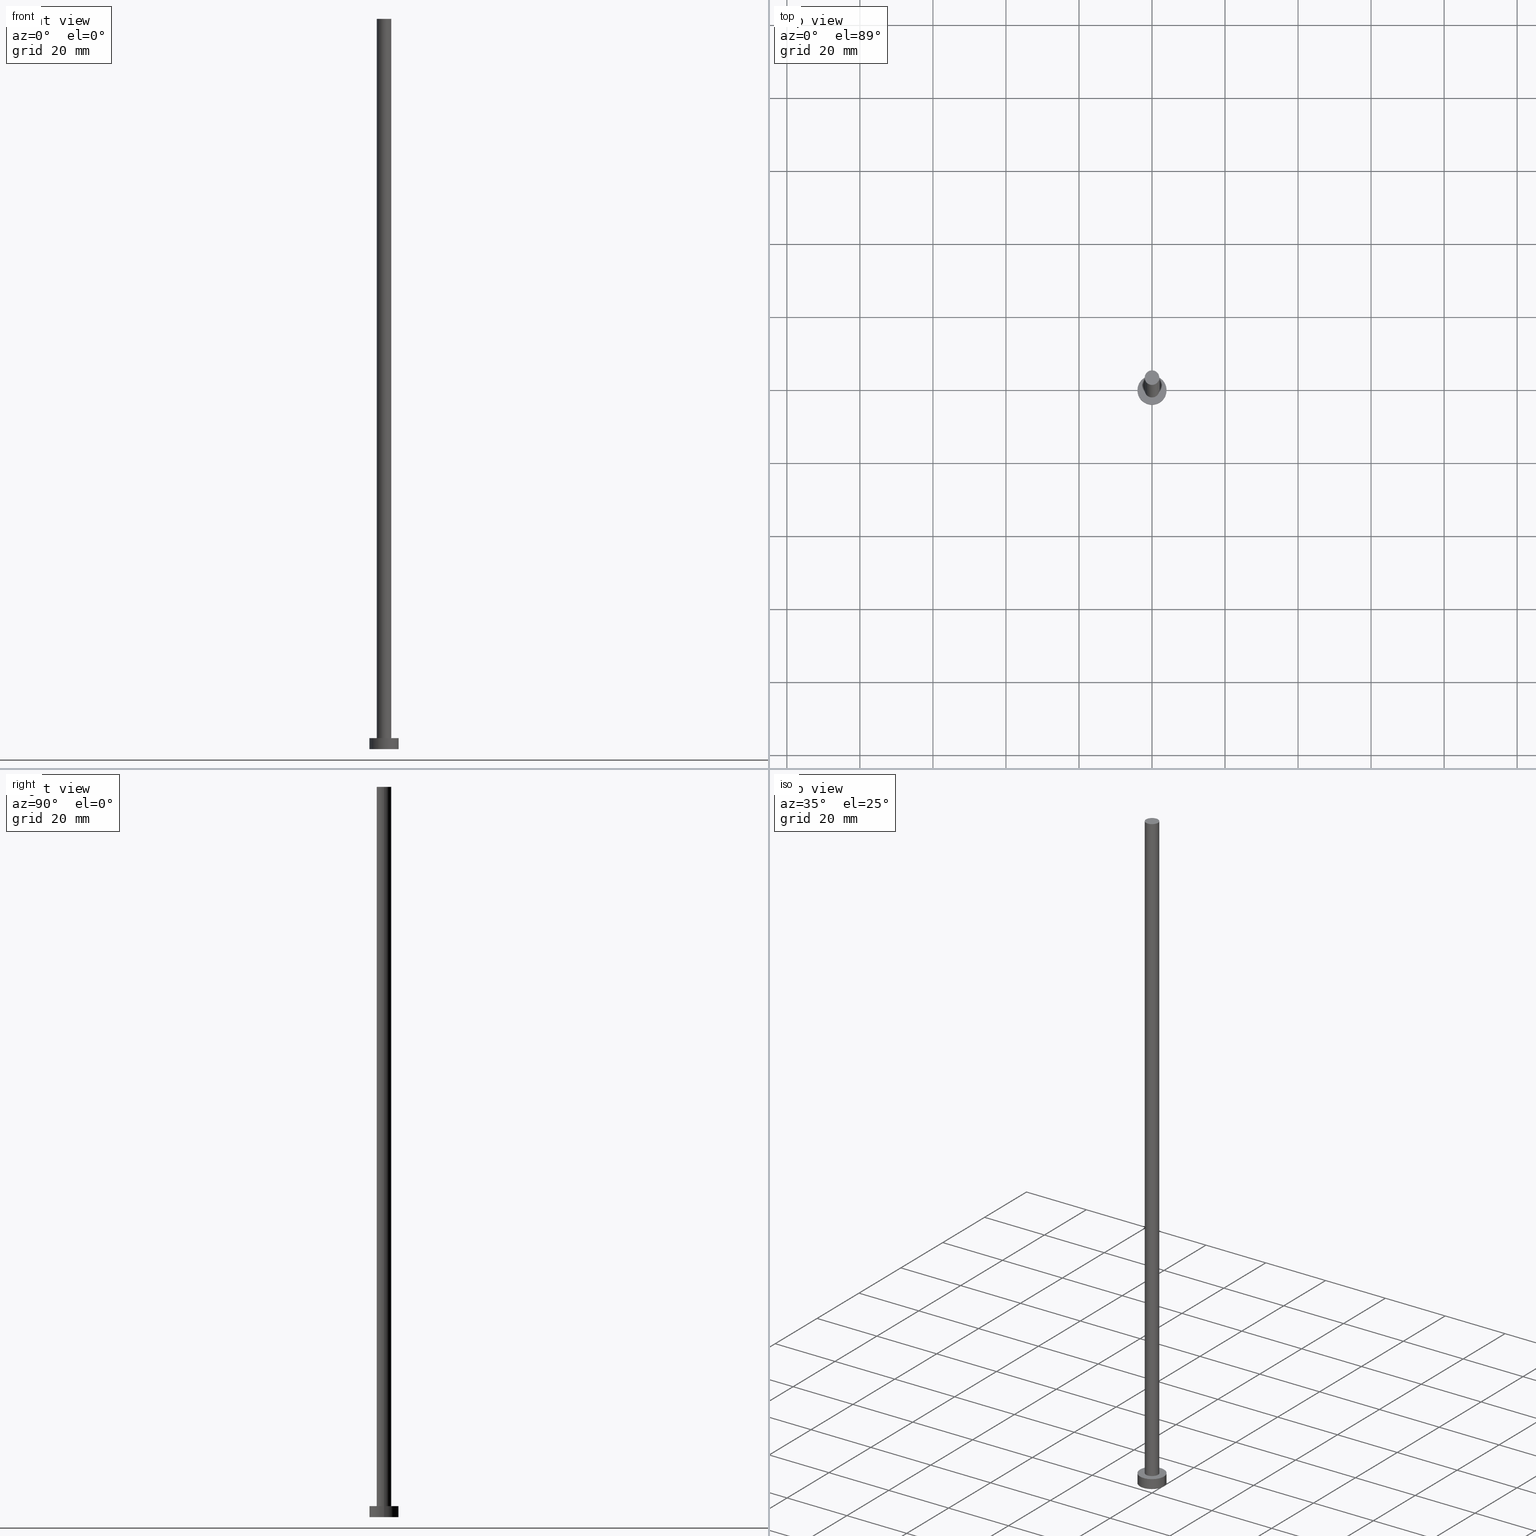
[diagram: canonical four-view strip — front | top / right | iso, engineering-drawing reading convention]
A machine part, canonical four-view strip (front | top / right | iso — engineering-drawing reading convention). The complete STEP part file that produces these views, byte-faithful:
ISO-10303-21;
HEADER;
FILE_DESCRIPTION (( 'STEP AP203' ),
    '1' );
FILE_NAME ('8d70.STEP',
    '2023-02-13T13:57:36',
    ( '' ),
    ( '' ),
    'SwSTEP 2.0',
    'SolidWorks 2019',
    '' );
FILE_SCHEMA (( 'CONFIG_CONTROL_DESIGN' ));
ENDSEC;

DATA;
#1 = ORIENTED_EDGE ( 'NONE', *, *, #162, .T. ) ;
#2 = APPROVAL_DATE_TIME ( #83, #233 ) ;
#3 = ORIENTED_EDGE ( 'NONE', *, *, #193, .F. ) ;
#4 = CC_DESIGN_PERSON_AND_ORGANIZATION_ASSIGNMENT ( #105, #39, ( #33 ) ) ;
#5 = CARTESIAN_POINT ( 'NONE',  ( 0.000000000000000000, 0.000000000000000000, 0.000000000000000000 ) ) ;
#6 = LINE ( 'NONE', #208, #205 ) ;
#7 = CARTESIAN_POINT ( 'NONE',  ( 0.000000000000000000, 0.000000000000000000, 0.000000000000000000 ) ) ;
#8 = CARTESIAN_POINT ( 'NONE',  ( 4.000000000000000000, 4.898587196589412829E-16, 3.000000000000000000 ) ) ;
#9 = CC_DESIGN_APPROVAL ( #233, ( #72 ) ) ;
#10 = FACE_OUTER_BOUND ( 'NONE', #166, .T. ) ;
#11 = EDGE_CURVE ( 'NONE', #32, #216, #221, .T. ) ;
#12 = PERSON_AND_ORGANIZATION_ROLE ( 'design_owner' ) ;
#13 = DIRECTION ( 'NONE',  ( 1.000000000000000000, 0.000000000000000000, -0.000000000000000000 ) ) ;
#14 = LOCAL_TIME ( 14, 57, 36.00000000000000000, #164 ) ;
#15 = DIRECTION ( 'NONE',  ( 0.000000000000000000, 0.000000000000000000, 1.000000000000000000 ) ) ;
#16 = APPROVAL_STATUS ( 'not_yet_approved' ) ;
#17 = DATE_TIME_ROLE ( 'classification_date' ) ;
#18 = APPROVAL_DATE_TIME ( #127, #171 ) ;
#19 = ADVANCED_FACE ( 'NONE', ( #90 ), #194, .T. ) ;
#20 = DATE_AND_TIME ( #43, #153 ) ;
#21 = VERTEX_POINT ( 'NONE', #207 ) ;
#22 = EDGE_LOOP ( 'NONE', ( #220, #184 ) ) ;
#23 = ORIENTED_EDGE ( 'NONE', *, *, #11, .F. ) ;
#24 = CARTESIAN_POINT ( 'NONE',  ( 0.000000000000000000, 0.000000000000000000, 200.0000000000000000 ) ) ;
#25 = CIRCLE ( 'NONE', #61, 2.000000000000000000 ) ;
#26 = LOCAL_TIME ( 14, 57, 36.00000000000000000, #197 ) ;
#27 = CIRCLE ( 'NONE', #120, 2.000000000000000000 ) ;
#28 = DIRECTION ( 'NONE',  ( -0.000000000000000000, -0.000000000000000000, -1.000000000000000000 ) ) ;
#29 = CYLINDRICAL_SURFACE ( 'NONE', #187, 4.000000000000000000 ) ;
#30 = CC_DESIGN_DATE_AND_TIME_ASSIGNMENT ( #20, #17, ( #72 ) ) ;
#31 = DIRECTION ( 'NONE',  ( 1.000000000000000000, 0.000000000000000000, 0.000000000000000000 ) ) ;
#32 = VERTEX_POINT ( 'NONE', #240 ) ;
#33 = PRODUCT_DEFINITION_FORMATION_WITH_SPECIFIED_SOURCE ( 'LIBOVOLN�', '', #203, .NOT_KNOWN. ) ;
#34 = CALENDAR_DATE ( 2023, 13, 2 ) ;
#35 = PERSON_AND_ORGANIZATION ( #41, #116 ) ;
#36 = DIRECTION ( 'NONE',  ( -0.000000000000000000, -0.000000000000000000, -1.000000000000000000 ) ) ;
#37 = SECURITY_CLASSIFICATION_LEVEL ( 'unclassified' ) ;
#38 = ORIENTED_EDGE ( 'NONE', *, *, #202, .T. ) ;
#39 = PERSON_AND_ORGANIZATION_ROLE ( 'design_supplier' ) ;
#40 = CALENDAR_DATE ( 2023, 13, 2 ) ;
#41 = PERSON ( 'NEUR�EN�', 'NEUR�EN�', 'NEUR�EN�', ('NEUR�EN�'), ('NEUR�EN�'), ('NEUR�EN�') ) ;
#42 = CC_DESIGN_SECURITY_CLASSIFICATION ( #72, ( #33 ) ) ;
#43 = CALENDAR_DATE ( 2023, 13, 2 ) ;
#44 = CARTESIAN_POINT ( 'NONE',  ( -2.000000000000000000, 0.000000000000000000, 200.0000000000000000 ) ) ;
#45 = DIRECTION ( 'NONE',  ( 0.000000000000000000, 0.000000000000000000, 1.000000000000000000 ) ) ;
#46 = CIRCLE ( 'NONE', #217, 2.000000000000000000 ) ;
#47 = CIRCLE ( 'NONE', #196, 4.000000000000000000 ) ;
#48 = CYLINDRICAL_SURFACE ( 'NONE', #248, 4.000000000000000000 ) ;
#49 = APPROVAL ( #16, 'NEUR�EN�' ) ;
#50 = CARTESIAN_POINT ( 'NONE',  ( 0.000000000000000000, 0.000000000000000000, 3.000000000000000000 ) ) ;
#51 = CARTESIAN_POINT ( 'NONE',  ( 2.000000000000000000, 2.449293598294706414E-16, 3.000000000000000000 ) ) ;
#52 = CC_DESIGN_PERSON_AND_ORGANIZATION_ASSIGNMENT ( #35, #121, ( #101 ) ) ;
#53 = AXIS2_PLACEMENT_3D ( 'NONE', #86, #191, #223 ) ;
#54 = FACE_OUTER_BOUND ( 'NONE', #231, .T. ) ;
#55 = EDGE_CURVE ( 'NONE', #183, #130, #6, .T. ) ;
#56 = DIRECTION ( 'NONE',  ( 0.000000000000000000, 0.000000000000000000, 1.000000000000000000 ) ) ;
#57 =( GEOMETRIC_REPRESENTATION_CONTEXT ( 3 ) GLOBAL_UNCERTAINTY_ASSIGNED_CONTEXT ( ( #249 ) ) GLOBAL_UNIT_ASSIGNED_CONTEXT ( ( #58, #158, #71 ) ) REPRESENTATION_CONTEXT ( 'NONE', 'WORKASPACE' ) );
#58 =( LENGTH_UNIT ( ) NAMED_UNIT ( * ) SI_UNIT ( .MILLI., .METRE. ) );
#59 = ADVANCED_FACE ( 'NONE', ( #150, #110 ), #224, .T. ) ;
#60 = ORIENTED_EDGE ( 'NONE', *, *, #114, .F. ) ;
#61 = AXIS2_PLACEMENT_3D ( 'NONE', #24, #45, #112 ) ;
#62 = CALENDAR_DATE ( 2023, 13, 2 ) ;
#63 = ORIENTED_EDGE ( 'NONE', *, *, #55, .F. ) ;
#64 = PERSON_AND_ORGANIZATION_ROLE ( 'classification_officer' ) ;
#65 = CIRCLE ( 'NONE', #192, 4.000000000000000000 ) ;
#66 = ORIENTED_EDGE ( 'NONE', *, *, #175, .F. ) ;
#67 = FACE_OUTER_BOUND ( 'NONE', #115, .T. ) ;
#68 = DIRECTION ( 'NONE',  ( -0.000000000000000000, -0.000000000000000000, -1.000000000000000000 ) ) ;
#69 = DIRECTION ( 'NONE',  ( 1.000000000000000000, 0.000000000000000000, -0.000000000000000000 ) ) ;
#70 = DIRECTION ( 'NONE',  ( -0.000000000000000000, -0.000000000000000000, -1.000000000000000000 ) ) ;
#71 =( NAMED_UNIT ( * ) SI_UNIT ( $, .STERADIAN. ) SOLID_ANGLE_UNIT ( ) );
#72 = SECURITY_CLASSIFICATION ( '', '', #37 ) ;
#73 = AXIS2_PLACEMENT_3D ( 'NONE', #5, #169, #31 ) ;
#74 = CARTESIAN_POINT ( 'NONE',  ( 0.000000000000000000, 0.000000000000000000, 0.000000000000000000 ) ) ;
#75 = COORDINATED_UNIVERSAL_TIME_OFFSET ( 1, 0, .AHEAD. ) ;
#76 = CC_DESIGN_DATE_AND_TIME_ASSIGNMENT ( #79, #125, ( #101 ) ) ;
#77 = LINE ( 'NONE', #143, #159 ) ;
#78 = APPLICATION_PROTOCOL_DEFINITION ( 'international standard', 'config_control_design', 1994, #174 ) ;
#79 = DATE_AND_TIME ( #165, #26 ) ;
#80 = PERSON_AND_ORGANIZATION_ROLE ( 'creator' ) ;
#81 = ORIENTED_EDGE ( 'NONE', *, *, #114, .T. ) ;
#82 = APPLICATION_CONTEXT ( 'configuration controlled 3d designs of mechanical parts and assemblies' ) ;
#83 = DATE_AND_TIME ( #40, #253 ) ;
#84 = ADVANCED_FACE ( 'NONE', ( #67 ), #48, .T. ) ;
#85 = CC_DESIGN_PERSON_AND_ORGANIZATION_ASSIGNMENT ( #230, #64, ( #72 ) ) ;
#86 = CARTESIAN_POINT ( 'NONE',  ( 0.000000000000000000, 0.000000000000000000, 200.0000000000000000 ) ) ;
#87 = EDGE_CURVE ( 'NONE', #130, #201, #126, .T. ) ;
#88 = CARTESIAN_POINT ( 'NONE',  ( 0.000000000000000000, 0.000000000000000000, 3.000000000000000000 ) ) ;
#89 = CARTESIAN_POINT ( 'NONE',  ( 0.000000000000000000, 0.000000000000000000, 3.000000000000000000 ) ) ;
#90 = FACE_OUTER_BOUND ( 'NONE', #232, .T. ) ;
#91 = CC_DESIGN_APPROVAL ( #171, ( #33 ) ) ;
#92 = CARTESIAN_POINT ( 'NONE',  ( 0.000000000000000000, 0.000000000000000000, 200.0000000000000000 ) ) ;
#93 = PERSON_AND_ORGANIZATION ( #41, #116 ) ;
#94 = ADVANCED_FACE ( 'NONE', ( #237 ), #29, .T. ) ;
#95 = AXIS2_PLACEMENT_3D ( 'NONE', #89, #168, #69 ) ;
#96 = AXIS2_PLACEMENT_3D ( 'NONE', #7, #189, #133 ) ;
#97 = DESIGN_CONTEXT ( 'detailed design', #174, 'design' ) ;
#98 = CYLINDRICAL_SURFACE ( 'NONE', #247, 2.000000000000000000 ) ;
#99 = DIRECTION ( 'NONE',  ( 1.000000000000000000, 0.000000000000000000, 0.000000000000000000 ) ) ;
#100 = APPROVAL_STATUS ( 'not_yet_approved' ) ;
#101 = PRODUCT_DEFINITION ( 'NEZN�M�', '', #33, #97 ) ;
#102 = PERSON_AND_ORGANIZATION ( #41, #116 ) ;
#103 = EDGE_LOOP ( 'NONE', ( #155, #242 ) ) ;
#104 = MANIFOLD_SOLID_BREP ( 'P�idat vysunut�m3', #148 ) ;
#105 = PERSON_AND_ORGANIZATION ( #41, #116 ) ;
#106 = SHAPE_DEFINITION_REPRESENTATION ( #167, #188 ) ;
#107 = ORIENTED_EDGE ( 'NONE', *, *, #182, .T. ) ;
#108 = ORIENTED_EDGE ( 'NONE', *, *, #193, .T. ) ;
#109 = ORIENTED_EDGE ( 'NONE', *, *, #182, .F. ) ;
#110 = FACE_OUTER_BOUND ( 'NONE', #103, .T. ) ;
#111 = VECTOR ( 'NONE', #211, 1000.000000000000000 ) ;
#112 = DIRECTION ( 'NONE',  ( 1.000000000000000000, 0.000000000000000000, 0.000000000000000000 ) ) ;
#113 = DIRECTION ( 'NONE',  ( -1.000000000000000000, 0.000000000000000000, 0.000000000000000000 ) ) ;
#114 = EDGE_CURVE ( 'NONE', #216, #32, #157, .T. ) ;
#115 = EDGE_LOOP ( 'NONE', ( #66, #108, #81, #181 ) ) ;
#116 = ORGANIZATION ( 'NEUR�EN�', 'NEUR�EN�', '' ) ;
#117 = ORIENTED_EDGE ( 'NONE', *, *, #122, .T. ) ;
#118 = CARTESIAN_POINT ( 'NONE',  ( 4.000000000000000000, 4.898587196589412829E-16, 3.000000000000000000 ) ) ;
#119 = DATE_AND_TIME ( #34, #144 ) ;
#120 = AXIS2_PLACEMENT_3D ( 'NONE', #222, #204, #134 ) ;
#121 = PERSON_AND_ORGANIZATION_ROLE ( 'creator' ) ;
#122 = EDGE_CURVE ( 'NONE', #21, #201, #190, .T. ) ;
#123 = PLANE ( 'NONE',  #226 ) ;
#124 = CARTESIAN_POINT ( 'NONE',  ( 4.000000000000000000, 4.898587196589412829E-16, 0.000000000000000000 ) ) ;
#125 = DATE_TIME_ROLE ( 'creation_date' ) ;
#126 = CIRCLE ( 'NONE', #135, 2.000000000000000000 ) ;
#127 = DATE_AND_TIME ( #62, #14 ) ;
#128 = VERTEX_POINT ( 'NONE', #151 ) ;
#129 = APPROVAL_ROLE ( '' ) ;
#130 = VERTEX_POINT ( 'NONE', #51 ) ;
#131 = APPROVAL_PERSON_ORGANIZATION ( #102, #233, #129 ) ;
#132 = ORIENTED_EDGE ( 'NONE', *, *, #87, .T. ) ;
#133 = DIRECTION ( 'NONE',  ( 1.000000000000000000, 0.000000000000000000, 0.000000000000000000 ) ) ;
#134 = DIRECTION ( 'NONE',  ( 1.000000000000000000, 0.000000000000000000, 0.000000000000000000 ) ) ;
#135 = AXIS2_PLACEMENT_3D ( 'NONE', #50, #219, #137 ) ;
#136 = AXIS2_PLACEMENT_3D ( 'NONE', #180, #212, #13 ) ;
#137 = DIRECTION ( 'NONE',  ( 1.000000000000000000, 0.000000000000000000, 0.000000000000000000 ) ) ;
#138 = CARTESIAN_POINT ( 'NONE',  ( 0.000000000000000000, 0.000000000000000000, 3.000000000000000000 ) ) ;
#139 = APPROVAL_PERSON_ORGANIZATION ( #93, #49, #141 ) ;
#140 = DIRECTION ( 'NONE',  ( -1.000000000000000000, 0.000000000000000000, 0.000000000000000000 ) ) ;
#141 = APPROVAL_ROLE ( '' ) ;
#142 = APPROVAL_DATE_TIME ( #119, #49 ) ;
#143 = CARTESIAN_POINT ( 'NONE',  ( -4.000000000000000000, 0.000000000000000000, 3.000000000000000000 ) ) ;
#144 = LOCAL_TIME ( 14, 57, 36.00000000000000000, #75 ) ;
#145 = VECTOR ( 'NONE', #28, 1000.000000000000000 ) ;
#146 = VERTEX_POINT ( 'NONE', #8 ) ;
#147 = COORDINATED_UNIVERSAL_TIME_OFFSET ( 1, 0, .AHEAD. ) ;
#148 = CLOSED_SHELL ( 'NONE', ( #209, #84, #94, #59, #245, #19, #227 ) ) ;
#149 = CC_DESIGN_PERSON_AND_ORGANIZATION_ASSIGNMENT ( #156, #12, ( #203 ) ) ;
#150 = FACE_BOUND ( 'NONE', #22, .T. ) ;
#151 = CARTESIAN_POINT ( 'NONE',  ( -4.000000000000000000, 0.000000000000000000, 3.000000000000000000 ) ) ;
#152 = DIRECTION ( 'NONE',  ( 1.000000000000000000, 0.000000000000000000, 0.000000000000000000 ) ) ;
#153 = LOCAL_TIME ( 14, 57, 36.00000000000000000, #147 ) ;
#154 = ORIENTED_EDGE ( 'NONE', *, *, #179, .F. ) ;
#155 = ORIENTED_EDGE ( 'NONE', *, *, #218, .T. ) ;
#156 = PERSON_AND_ORGANIZATION ( #41, #116 ) ;
#157 = CIRCLE ( 'NONE', #73, 4.000000000000000000 ) ;
#158 =( NAMED_UNIT ( * ) PLANE_ANGLE_UNIT ( ) SI_UNIT ( $, .RADIAN. ) );
#159 = VECTOR ( 'NONE', #214, 1000.000000000000000 ) ;
#160 = COORDINATED_UNIVERSAL_TIME_OFFSET ( 1, 0, .AHEAD. ) ;
#161 = ORIENTED_EDGE ( 'NONE', *, *, #55, .T. ) ;
#162 = EDGE_CURVE ( 'NONE', #201, #130, #27, .T. ) ;
#163 = ORIENTED_EDGE ( 'NONE', *, *, #122, .F. ) ;
#164 = COORDINATED_UNIVERSAL_TIME_OFFSET ( 1, 0, .AHEAD. ) ;
#165 = CALENDAR_DATE ( 2023, 13, 2 ) ;
#166 = EDGE_LOOP ( 'NONE', ( #23, #60 ) ) ;
#167 = PRODUCT_DEFINITION_SHAPE ( 'NONE', 'NONE',  #101 ) ;
#168 = DIRECTION ( 'NONE',  ( 0.000000000000000000, 0.000000000000000000, 1.000000000000000000 ) ) ;
#169 = DIRECTION ( 'NONE',  ( 0.000000000000000000, 0.000000000000000000, 1.000000000000000000 ) ) ;
#170 = DIRECTION ( 'NONE',  ( -1.000000000000000000, 0.000000000000000000, 0.000000000000000000 ) ) ;
#171 = APPROVAL ( #100, 'NEUR�EN�' ) ;
#172 = ORIENTED_EDGE ( 'NONE', *, *, #11, .T. ) ;
#173 = DIRECTION ( 'NONE',  ( 0.000000000000000000, 0.000000000000000000, 1.000000000000000000 ) ) ;
#174 = APPLICATION_CONTEXT ( 'configuration controlled 3d designs of mechanical parts and assemblies' ) ;
#175 = EDGE_CURVE ( 'NONE', #146, #128, #47, .T. ) ;
#176 = LINE ( 'NONE', #118, #111 ) ;
#177 = CC_DESIGN_APPROVAL ( #49, ( #101 ) ) ;
#178 = CARTESIAN_POINT ( 'NONE',  ( 0.000000000000000000, 0.000000000000000000, 0.000000000000000000 ) ) ;
#179 = EDGE_CURVE ( 'NONE', #21, #183, #25, .T. ) ;
#180 = CARTESIAN_POINT ( 'NONE',  ( 0.000000000000000000, 0.000000000000000000, 200.0000000000000000 ) ) ;
#181 = ORIENTED_EDGE ( 'NONE', *, *, #202, .F. ) ;
#182 = EDGE_CURVE ( 'NONE', #183, #21, #46, .T. ) ;
#183 = VERTEX_POINT ( 'NONE', #228 ) ;
#184 = ORIENTED_EDGE ( 'NONE', *, *, #87, .F. ) ;
#185 = ORIENTED_EDGE ( 'NONE', *, *, #218, .F. ) ;
#186 = DIRECTION ( 'NONE',  ( -0.000000000000000000, -0.000000000000000000, -1.000000000000000000 ) ) ;
#187 = AXIS2_PLACEMENT_3D ( 'NONE', #239, #68, #113 ) ;
#188 = ADVANCED_BREP_SHAPE_REPRESENTATION ( '8d70', ( #104, #236 ), #57 ) ;
#189 = DIRECTION ( 'NONE',  ( 0.000000000000000000, 0.000000000000000000, 1.000000000000000000 ) ) ;
#190 = LINE ( 'NONE', #44, #145 ) ;
#191 = DIRECTION ( 'NONE',  ( -0.000000000000000000, -0.000000000000000000, -1.000000000000000000 ) ) ;
#192 = AXIS2_PLACEMENT_3D ( 'NONE', #229, #15, #99 ) ;
#193 = EDGE_CURVE ( 'NONE', #146, #216, #176, .T. ) ;
#194 = CYLINDRICAL_SURFACE ( 'NONE', #53, 2.000000000000000000 ) ;
#195 = PLANE ( 'NONE',  #136 ) ;
#196 = AXIS2_PLACEMENT_3D ( 'NONE', #138, #206, #152 ) ;
#197 = COORDINATED_UNIVERSAL_TIME_OFFSET ( 1, 0, .AHEAD. ) ;
#198 = DIRECTION ( 'NONE',  ( 0.000000000000000000, 0.000000000000000000, 1.000000000000000000 ) ) ;
#199 = PERSON_AND_ORGANIZATION ( #41, #116 ) ;
#200 = APPROVAL_ROLE ( '' ) ;
#201 = VERTEX_POINT ( 'NONE', #251 ) ;
#202 = EDGE_CURVE ( 'NONE', #128, #32, #77, .T. ) ;
#203 = PRODUCT ( '8d70', '8d70', '', ( #244 ) ) ;
#204 = DIRECTION ( 'NONE',  ( 0.000000000000000000, 0.000000000000000000, 1.000000000000000000 ) ) ;
#205 = VECTOR ( 'NONE', #70, 1000.000000000000000 ) ;
#206 = DIRECTION ( 'NONE',  ( 0.000000000000000000, 0.000000000000000000, 1.000000000000000000 ) ) ;
#207 = CARTESIAN_POINT ( 'NONE',  ( -2.000000000000000000, 0.000000000000000000, 200.0000000000000000 ) ) ;
#208 = CARTESIAN_POINT ( 'NONE',  ( 2.000000000000000000, 2.449293598294706414E-16, 200.0000000000000000 ) ) ;
#209 = ADVANCED_FACE ( 'NONE', ( #54 ), #98, .T. ) ;
#210 = DIRECTION ( 'NONE',  ( 1.000000000000000000, 0.000000000000000000, 0.000000000000000000 ) ) ;
#211 = DIRECTION ( 'NONE',  ( -0.000000000000000000, -0.000000000000000000, -1.000000000000000000 ) ) ;
#212 = DIRECTION ( 'NONE',  ( 0.000000000000000000, 0.000000000000000000, 1.000000000000000000 ) ) ;
#213 = DIRECTION ( 'NONE',  ( 1.000000000000000000, 0.000000000000000000, -0.000000000000000000 ) ) ;
#214 = DIRECTION ( 'NONE',  ( -0.000000000000000000, -0.000000000000000000, -1.000000000000000000 ) ) ;
#215 = PRODUCT_RELATED_PRODUCT_CATEGORY ( 'detail', '', ( #203 ) ) ;
#216 = VERTEX_POINT ( 'NONE', #124 ) ;
#217 = AXIS2_PLACEMENT_3D ( 'NONE', #92, #173, #210 ) ;
#218 = EDGE_CURVE ( 'NONE', #128, #146, #65, .T. ) ;
#219 = DIRECTION ( 'NONE',  ( 0.000000000000000000, 0.000000000000000000, 1.000000000000000000 ) ) ;
#220 = ORIENTED_EDGE ( 'NONE', *, *, #162, .F. ) ;
#221 = CIRCLE ( 'NONE', #96, 4.000000000000000000 ) ;
#222 = CARTESIAN_POINT ( 'NONE',  ( 0.000000000000000000, 0.000000000000000000, 3.000000000000000000 ) ) ;
#223 = DIRECTION ( 'NONE',  ( -1.000000000000000000, 0.000000000000000000, 0.000000000000000000 ) ) ;
#224 = PLANE ( 'NONE',  #95 ) ;
#225 = DIRECTION ( 'NONE',  ( 1.000000000000000000, 0.000000000000000000, 0.000000000000000000 ) ) ;
#226 = AXIS2_PLACEMENT_3D ( 'NONE', #74, #56, #213 ) ;
#227 = ADVANCED_FACE ( 'NONE', ( #246 ), #195, .T. ) ;
#228 = CARTESIAN_POINT ( 'NONE',  ( 2.000000000000000000, 2.449293598294706414E-16, 200.0000000000000000 ) ) ;
#229 = CARTESIAN_POINT ( 'NONE',  ( 0.000000000000000000, 0.000000000000000000, 3.000000000000000000 ) ) ;
#230 = PERSON_AND_ORGANIZATION ( #41, #116 ) ;
#231 = EDGE_LOOP ( 'NONE', ( #109, #161, #132, #163 ) ) ;
#232 = EDGE_LOOP ( 'NONE', ( #63, #154, #117, #1 ) ) ;
#233 = APPROVAL ( #255, 'NEUR�EN�' ) ;
#234 = PERSON_AND_ORGANIZATION ( #41, #116 ) ;
#235 = ORIENTED_EDGE ( 'NONE', *, *, #179, .T. ) ;
#236 = AXIS2_PLACEMENT_3D ( 'NONE', #178, #198, #225 ) ;
#237 = FACE_OUTER_BOUND ( 'NONE', #238, .T. ) ;
#238 = EDGE_LOOP ( 'NONE', ( #3, #185, #38, #172 ) ) ;
#239 = CARTESIAN_POINT ( 'NONE',  ( 0.000000000000000000, 0.000000000000000000, 3.000000000000000000 ) ) ;
#240 = CARTESIAN_POINT ( 'NONE',  ( -4.000000000000000000, 0.000000000000000000, 0.000000000000000000 ) ) ;
#241 = APPROVAL_PERSON_ORGANIZATION ( #234, #171, #200 ) ;
#242 = ORIENTED_EDGE ( 'NONE', *, *, #175, .T. ) ;
#243 = CC_DESIGN_PERSON_AND_ORGANIZATION_ASSIGNMENT ( #199, #80, ( #33 ) ) ;
#244 = MECHANICAL_CONTEXT ( 'NONE', #82, 'mechanical' ) ;
#245 = ADVANCED_FACE ( 'NONE', ( #10 ), #123, .F. ) ;
#246 = FACE_OUTER_BOUND ( 'NONE', #254, .T. ) ;
#247 = AXIS2_PLACEMENT_3D ( 'NONE', #252, #36, #140 ) ;
#248 = AXIS2_PLACEMENT_3D ( 'NONE', #88, #186, #170 ) ;
#249 = UNCERTAINTY_MEASURE_WITH_UNIT (LENGTH_MEASURE( 1.000000000000000082E-05 ), #58, 'distance_accuracy_value', 'NONE');
#250 = APPLICATION_PROTOCOL_DEFINITION ( 'international standard', 'config_control_design', 1994, #82 ) ;
#251 = CARTESIAN_POINT ( 'NONE',  ( -2.000000000000000000, 0.000000000000000000, 3.000000000000000000 ) ) ;
#252 = CARTESIAN_POINT ( 'NONE',  ( 0.000000000000000000, 0.000000000000000000, 200.0000000000000000 ) ) ;
#253 = LOCAL_TIME ( 14, 57, 36.00000000000000000, #160 ) ;
#254 = EDGE_LOOP ( 'NONE', ( #235, #107 ) ) ;
#255 = APPROVAL_STATUS ( 'not_yet_approved' ) ;
ENDSEC;
END-ISO-10303-21;
